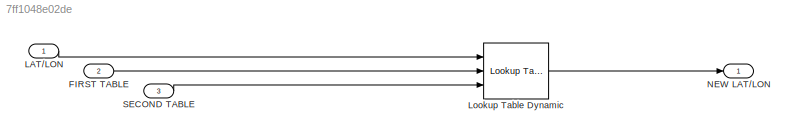
MODEL slx_7ff1048e02de
KIND model
CONFIG AbsTol = auto
CONFIG EnableMultiTasking = off
CONFIG FixedStep = auto
CONFIG MaxStep = auto
CONFIG MinStep = auto
CONFIG RelTol = 1e-3
CONFIG SampleTimeConstraint = Unconstrained
CONFIG SolverName = VariableStepAuto
CONFIG StartTime = 0.0
CONFIG StopTime = 10.0
BLOCK [Inport] FIRST TABLE
  Port = 2
BLOCK [Inport] LAT//LON
BLOCK [Reference] Lookup Table Dynamic  REF=simulink/Lookup
Tables/Lookup
Table
Dynamic
  Ports = [3, 1]
  SourceBlock = simulink/Lookup\nTables/Lookup\nTable\nDynamic
  SourceProductBaseCode = SL
  SourceType = Lookup Table Dynamic
BLOCK [Outport] NEW LAT//LON
BLOCK [Inport] SECOND TABLE
  Port = 3
LINE FIRST TABLE:1 -> Lookup Table Dynamic:2
LINE LAT//LON:1 -> Lookup Table Dynamic:1
LINE Lookup Table Dynamic:1 -> NEW LAT//LON:1
LINE SECOND TABLE:1 -> Lookup Table Dynamic:3
